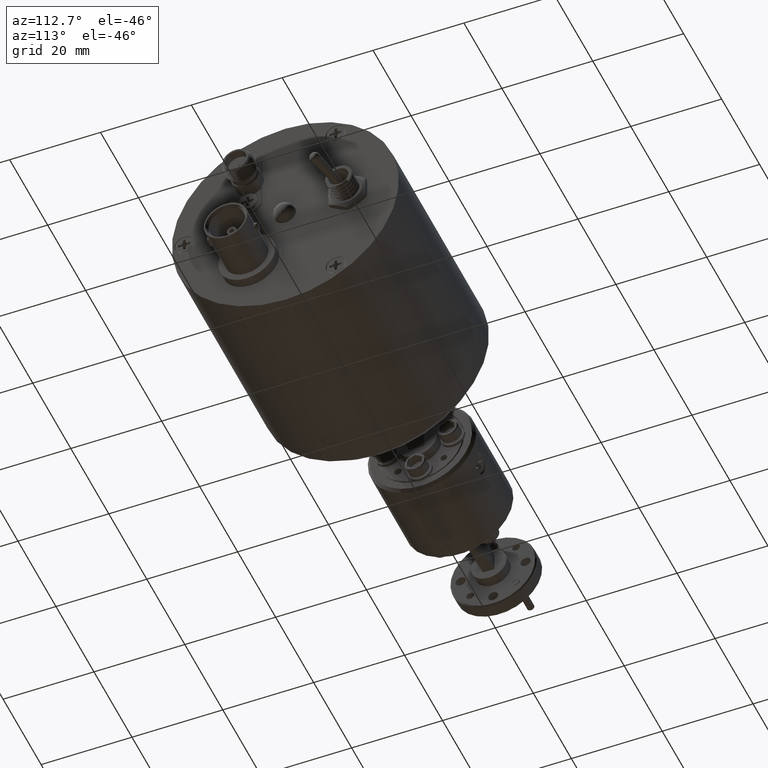
[diagram: clean part render]
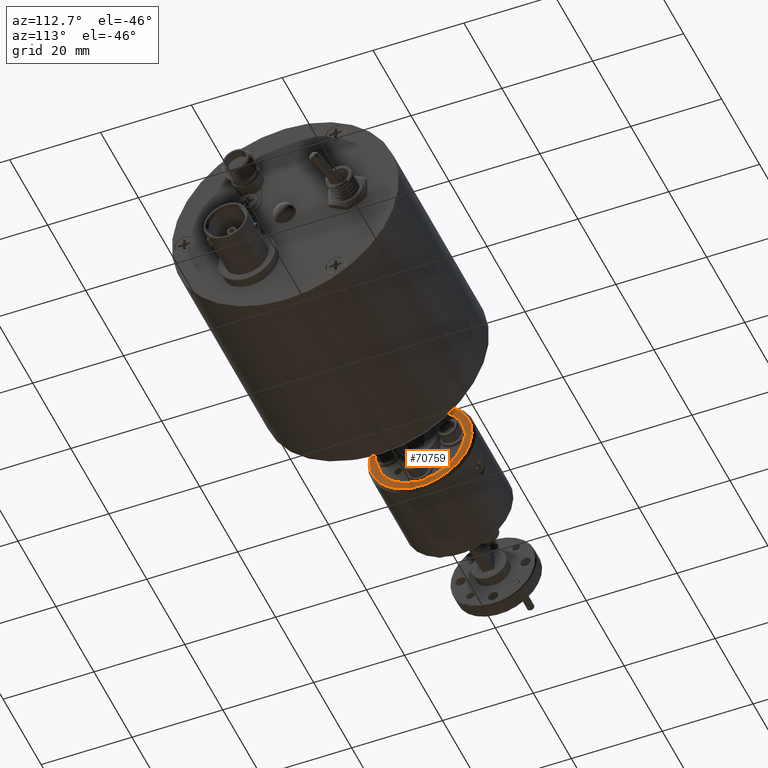
[diagram: same view with one face highlighted and labeled with its STEP entity id]
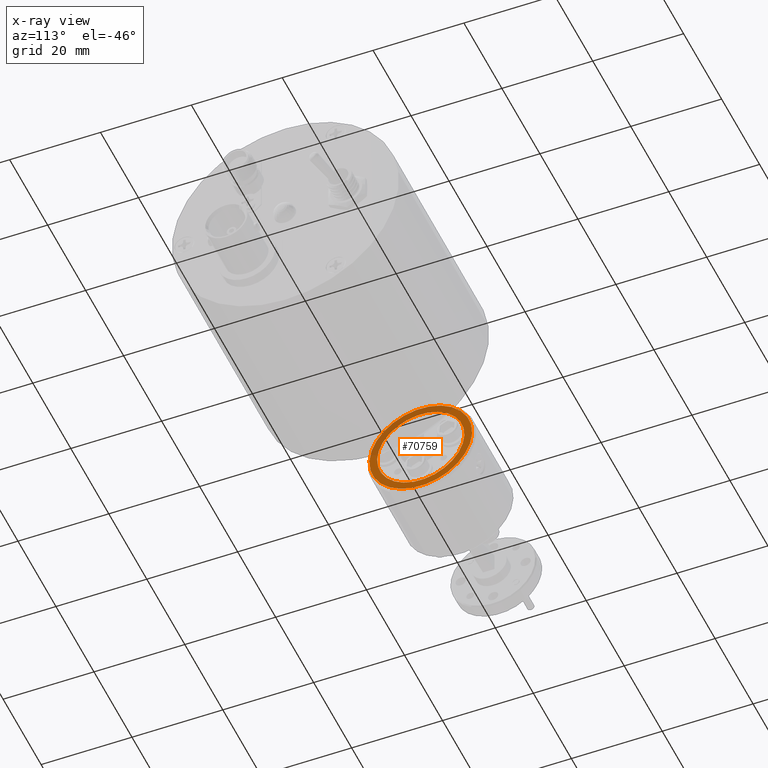
[diagram: x-ray of the same camera — body ghosted, the highlighted face saturated]
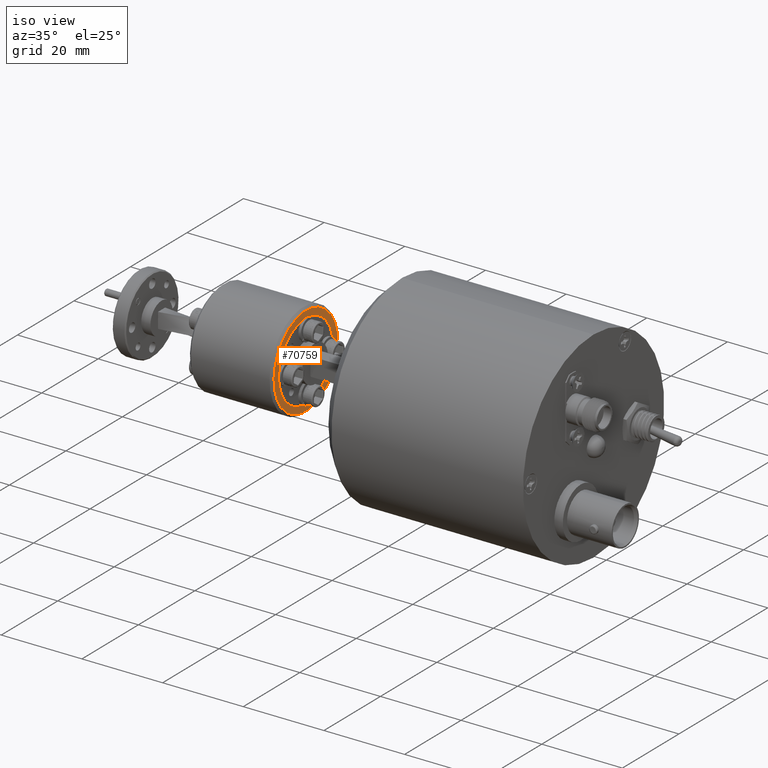
[diagram: same view with one face highlighted and labeled with its STEP entity id]
A machine part, auxiliary view. The second image highlights one B-rep face of the part: STEP entity #70759.
The next image is the same camera in x-ray: the body ghosted, the highlighted face saturated — about 34% of this face is hidden behind the body in this view.
A second angle (iso view) of the same face is appended — the face is thin or edge-on in the first view.
In plain terms, the highlighted planar face has unit normal (1, 0, -0).
Its self-contained STEP definition (entity closure, byte-faithful):
#792 = ORIENTED_EDGE ( 'NONE', *, *, #70007, .F. ) ;
#1867 = DIRECTION ( 'NONE',  ( 1.000000000000000000, 1.464648536792188000E-016, -4.178127592846281800E-017 ) ) ;
#3199 = AXIS2_PLACEMENT_3D ( 'NONE', #82658, #1867, #90472 ) ;
#6459 = DIRECTION ( 'NONE',  ( 1.000000000000000000, 1.464648536792188000E-016, -4.178127592846281800E-017 ) ) ;
#7826 = DIRECTION ( 'NONE',  ( 0.0000000000000000000, -0.3907311284892740500, -0.9205048534524401500 ) ) ;
#8169 = DIRECTION ( 'NONE',  ( 1.000000000000000000, 1.464648536792188000E-016, -4.178127592846281800E-017 ) ) ;
#9253 = CARTESIAN_POINT ( 'NONE',  ( -11.37391138113375400, 31.13701532693852800, 26.93113498468159900 ) ) ;
#10723 = PLANE ( 'NONE',  #53174 ) ;
#10978 = EDGE_CURVE ( 'NONE', #95667, #13329, #36157, .T. ) ;
#13329 = VERTEX_POINT ( 'NONE', #9253 ) ;
#26896 = ORIENTED_EDGE ( 'NONE', *, *, #10978, .T. ) ;
#30765 = CARTESIAN_POINT ( 'NONE',  ( -11.37391138113375400, 35.55344927225279200, 37.33560134325452400 ) ) ;
#31158 = EDGE_CURVE ( 'NONE', #58144, #75341, #42721, .T. ) ;
#36157 = CIRCLE ( 'NONE', #90916, 11.30299999999999400 ) ;
#42036 = CARTESIAN_POINT ( 'NONE',  ( -11.37391138113375400, 31.80196156140157600, 28.49765014428695800 ) ) ;
#42721 = CIRCLE ( 'NONE', #3199, 9.601199999999998600 ) ;
#45782 = AXIS2_PLACEMENT_3D ( 'NONE', #60921, #69046, #86029 ) ;
#46081 = AXIS2_PLACEMENT_3D ( 'NONE', #89363, #8169, #7826 ) ;
#48486 = CIRCLE ( 'NONE', #46081, 11.30299999999999400 ) ;
#53174 = AXIS2_PLACEMENT_3D ( 'NONE', #99620, #100293, #68868 ) ;
#56875 = FACE_OUTER_BOUND ( 'NONE', #68766, .T. ) ;
#58144 = VERTEX_POINT ( 'NONE', #42036 ) ;
#60921 = CARTESIAN_POINT ( 'NONE',  ( -11.37391138113375400, 35.55344927225279200, 37.33560134325452400 ) ) ;
#62853 = DIRECTION ( 'NONE',  ( 0.0000000000000000000, -0.3907311284892740500, -0.9205048534524401500 ) ) ;
#63864 = CARTESIAN_POINT ( 'NONE',  ( -11.37391138113375400, 39.30493698310400700, 46.17355254222209000 ) ) ;
#67030 = CIRCLE ( 'NONE', #45782, 9.601199999999998600 ) ;
#68253 = FACE_BOUND ( 'NONE', #103557, .T. ) ;
#68766 = EDGE_LOOP ( 'NONE', ( #26896, #85902 ) ) ;
#68868 = DIRECTION ( 'NONE',  ( 1.876851028651199200E-017, -0.3907311284892742200, -0.9205048534524401500 ) ) ;
#69046 = DIRECTION ( 'NONE',  ( 1.000000000000000000, 1.464648536792188000E-016, -4.178127592846281800E-017 ) ) ;
#70007 = EDGE_CURVE ( 'NONE', #75341, #58144, #67030, .T. ) ;
#70759 = ADVANCED_FACE ( 'NONE', ( #56875, #68253 ), #10723, .T. ) ;
#75341 = VERTEX_POINT ( 'NONE', #63864 ) ;
#76522 = ORIENTED_EDGE ( 'NONE', *, *, #31158, .F. ) ;
#76721 = EDGE_CURVE ( 'NONE', #13329, #95667, #48486, .T. ) ;
#82349 = CARTESIAN_POINT ( 'NONE',  ( -11.37391138113375400, 39.96988321756705200, 47.74006770182745600 ) ) ;
#82658 = CARTESIAN_POINT ( 'NONE',  ( -11.37391138113375400, 35.55344927225279200, 37.33560134325452400 ) ) ;
#85902 = ORIENTED_EDGE ( 'NONE', *, *, #76721, .T. ) ;
#86029 = DIRECTION ( 'NONE',  ( 0.0000000000000000000, -0.3907311284892739400, -0.9205048534524402600 ) ) ;
#89363 = CARTESIAN_POINT ( 'NONE',  ( -11.37391138113375400, 35.55344927225279200, 37.33560134325452400 ) ) ;
#90472 = DIRECTION ( 'NONE',  ( 0.0000000000000000000, -0.3907311284892739400, -0.9205048534524402600 ) ) ;
#90916 = AXIS2_PLACEMENT_3D ( 'NONE', #30765, #6459, #62853 ) ;
#95667 = VERTEX_POINT ( 'NONE', #82349 ) ;
#99620 = CARTESIAN_POINT ( 'NONE',  ( -11.37391138113375400, 35.55344927225279200, 37.33560134325452400 ) ) ;
#100293 = DIRECTION ( 'NONE',  ( 1.000000000000000000, 1.464648536792188200E-016, -4.178127592846278700E-017 ) ) ;
#103557 = EDGE_LOOP ( 'NONE', ( #792, #76522 ) ) ;